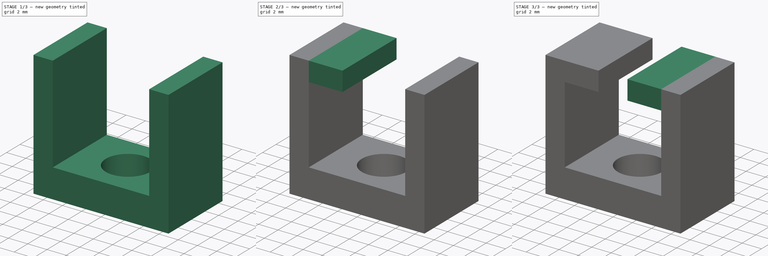
[diagram: build sequence overview — one tinted view per stage of 3, left to right]
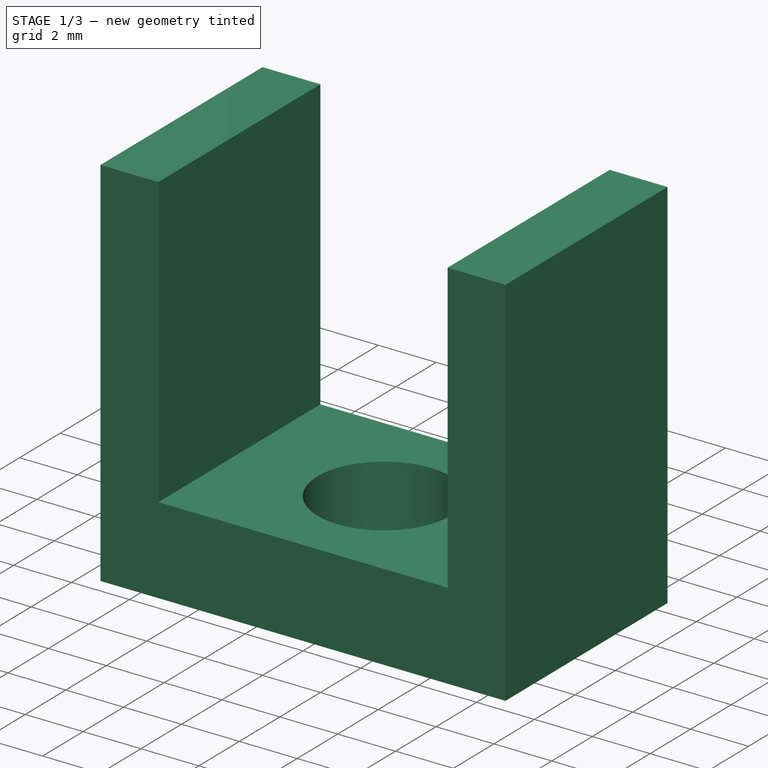
[diagram: stage 1 of 3 — iso view after this stage's code; geometry added in this stage tinted green]
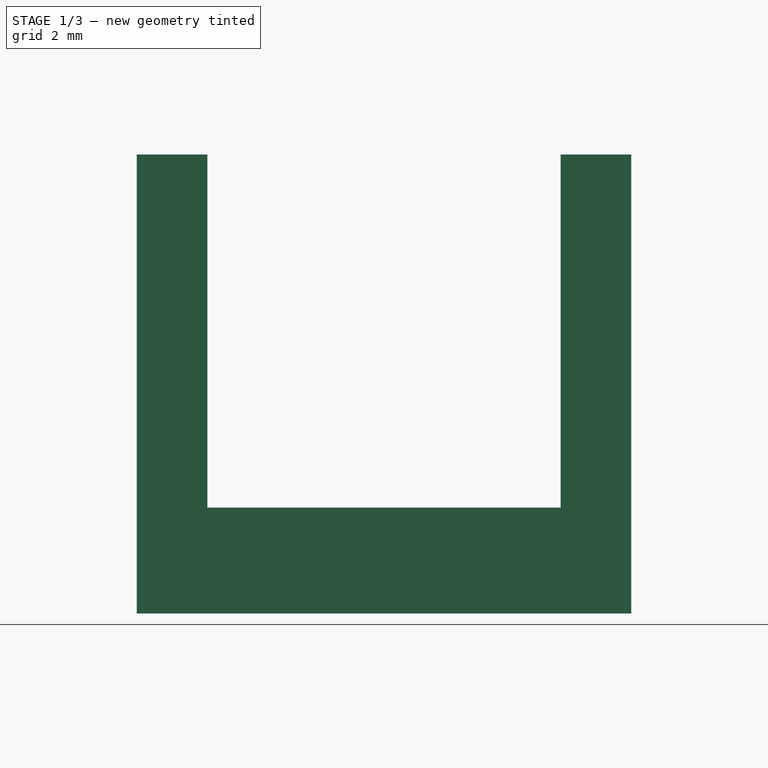
[diagram: stage 1 of 3 — front view after this stage's code; geometry added in this stage tinted green]
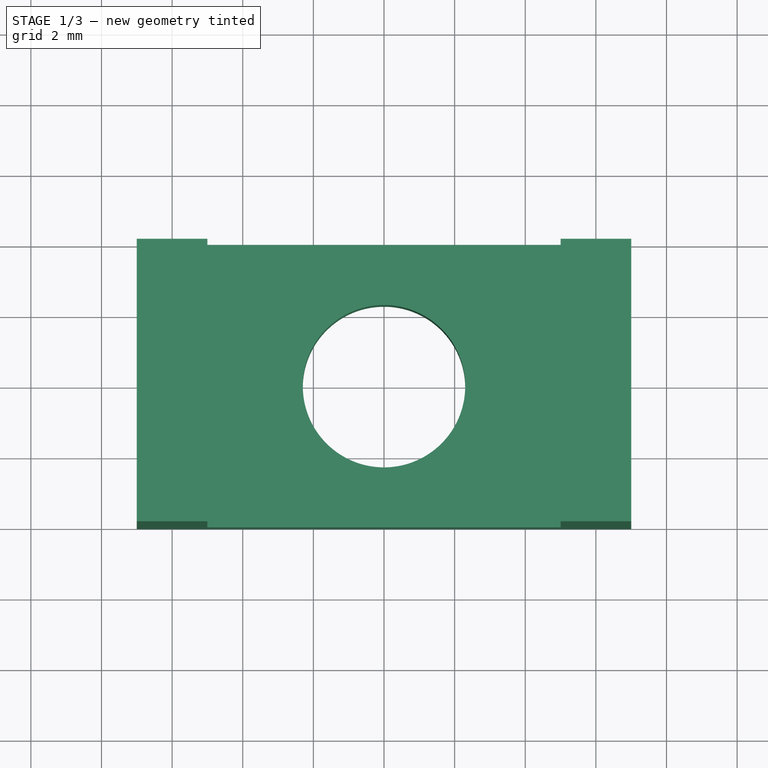
[diagram: stage 1 of 3 — top view after this stage's code; geometry added in this stage tinted green]
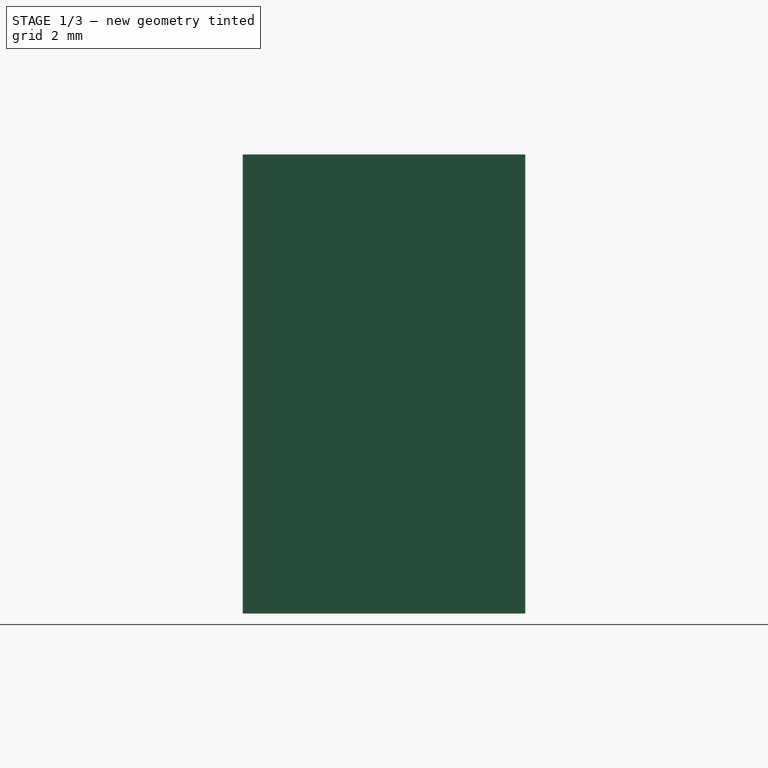
[diagram: stage 1 of 3 — right view after this stage's code; geometry added in this stage tinted green]
FCSTD DOCUMENT  (FreeCAD 0.16R6706 (Git))
Label: BalanceWeight
License: All rights reserved
LicenseURL: http://en.wikipedia.org/wiki/All_rights_reserved
objects: Sketcher::SketchObject×4, PartDesign::Pad×4, Part::MultiFuse×1
note: 13 computed .brp shape members not serialized (recipe doc carries the construction recipe); baked Part::Feature solids carry a one-line shape summary decoded from their .brp

FEATURE [Sketcher::SketchObject] Sketch
  sketch-geometry (5):
    g0: LineSegment StartX=-7 StartY=4 StartZ=0 EndX=7 EndY=4 EndZ=0
    g1: LineSegment StartX=7 StartY=4 StartZ=0 EndX=7 EndY=-4 EndZ=0
    g2: LineSegment StartX=7 StartY=-4 StartZ=0 EndX=-7 EndY=-4 EndZ=0
    g3: LineSegment StartX=-7 StartY=-4 StartZ=0 EndX=-7 EndY=4 EndZ=0
    g4: Circle CenterX=0 CenterY=0 CenterZ=0 NormalX=0 NormalY=0 NormalZ=1 Radius=2.3
  constraints (14):
    c: Coincident(g0,g1)
    c: Coincident(g1,g2)
    c: Coincident(g2,g3)
    c: Coincident(g3,g0)
    c: Horizontal(g0)
    c: Horizontal(g2)
    c: Vertical(g1)
    c: Vertical(g3)
    c: Distance(g1) = 8
    c: Distance(g-1,g3) = 7
    c: Distance(g-1,g0) = 4
    c: Distance(g0) = 14
    c: Coincident(g4,g-1)
    c: Radius(g4) = 2.3
FEATURE [PartDesign::Pad] Pad
  Length = 3
  Length2 = 100
  Sketch = -> Sketch
  Type = 0
FEATURE [Sketcher::SketchObject] Sketch001
  ExternalGeometry = -> [Pad]
  Placement = pos=(0,0,3) rot=(0,0,1;0rad)
  Support = -> Pad [Face7]
  sketch-geometry (8):
    g0: LineSegment StartX=-7 StartY=4 StartZ=0 EndX=-5 EndY=4 EndZ=0
    g1: LineSegment StartX=-5 StartY=4 StartZ=0 EndX=-5 EndY=-4 EndZ=0
    g2: LineSegment StartX=-5 StartY=-4 StartZ=0 EndX=-7 EndY=-4 EndZ=0
    g3: LineSegment StartX=-7 StartY=-4 StartZ=0 EndX=-7 EndY=4 EndZ=0
    g4: LineSegment StartX=7 StartY=4 StartZ=0 EndX=5 EndY=4 EndZ=0
    g5: LineSegment StartX=5 StartY=4 StartZ=0 EndX=5 EndY=-4 EndZ=0
    g6: LineSegment StartX=5 StartY=-4 StartZ=0 EndX=7 EndY=-4 EndZ=0
    g7: LineSegment StartX=7 StartY=-4 StartZ=0 EndX=7 EndY=4 EndZ=0
  constraints (22):
    c: Coincident(g0,g1)
    c: Coincident(g1,g2)
    c: Coincident(g2,g3)
    c: Coincident(g3,g0)
    c: Horizontal(g0)
    c: Horizontal(g2)
    c: Vertical(g1)
    c: Vertical(g3)
    c: Coincident(g0,g-4)
    c: PointOnObject(g1,g-5)
    c: Distance(g0,g0) = 2
    c: Coincident(g4,g5)
    c: Coincident(g5,g6)
    c: Coincident(g6,g7)
    c: Coincident(g7,g4)
    c: Horizontal(g4)
    c: Horizontal(g6)
    c: Vertical(g5)
    c: Vertical(g7)
    c: Coincident(g4,g-6)
    c: PointOnObject(g5,g-5)
    c: Distance(g4,g4) = 2
FEATURE [PartDesign::Pad] Pad001
  Length = 10
  Length2 = 100
  Sketch = -> Sketch001
  Type = 0
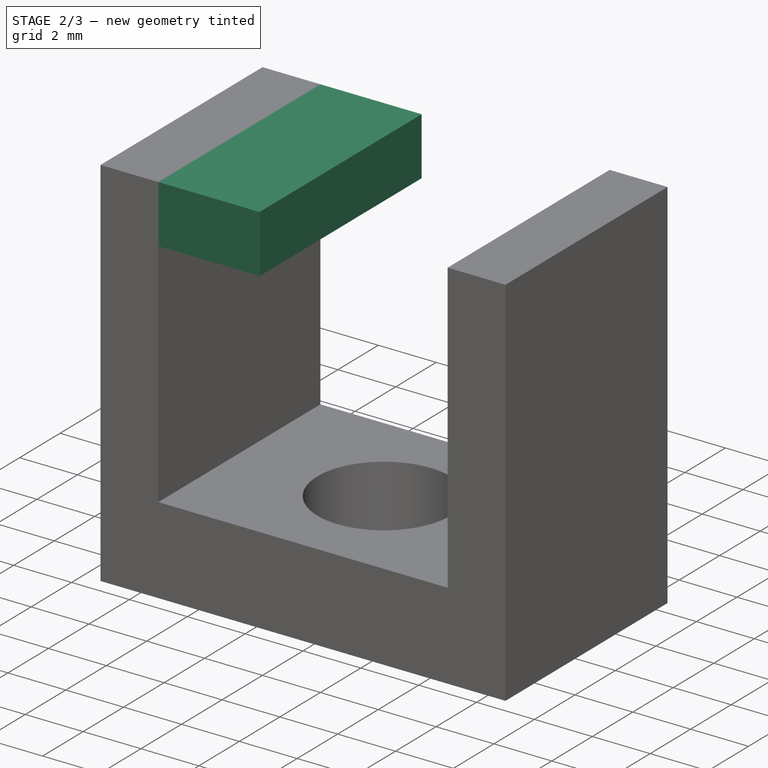
[diagram: stage 2 of 3 — iso view after this stage's code; geometry added in this stage tinted green]
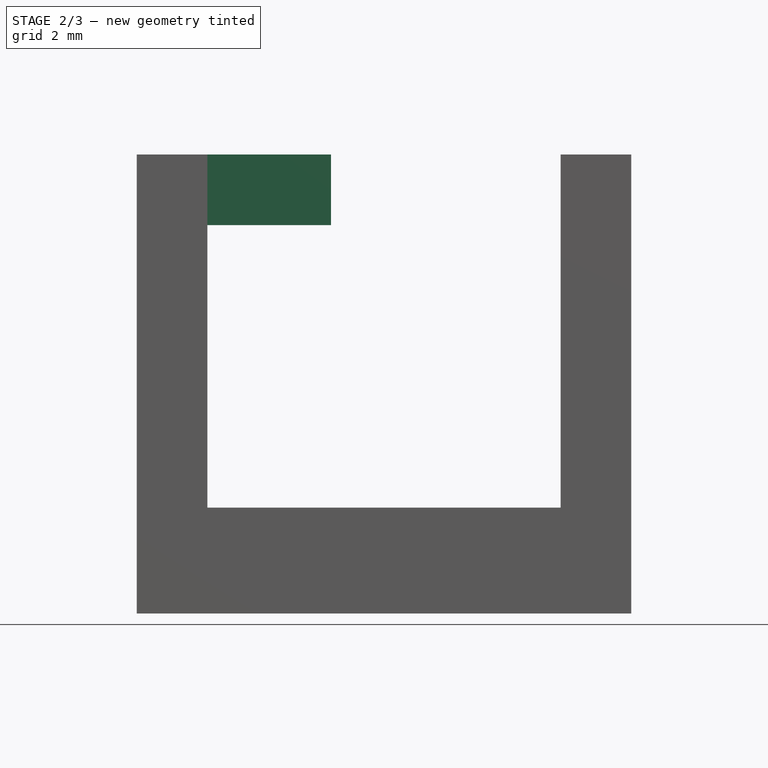
[diagram: stage 2 of 3 — front view after this stage's code; geometry added in this stage tinted green]
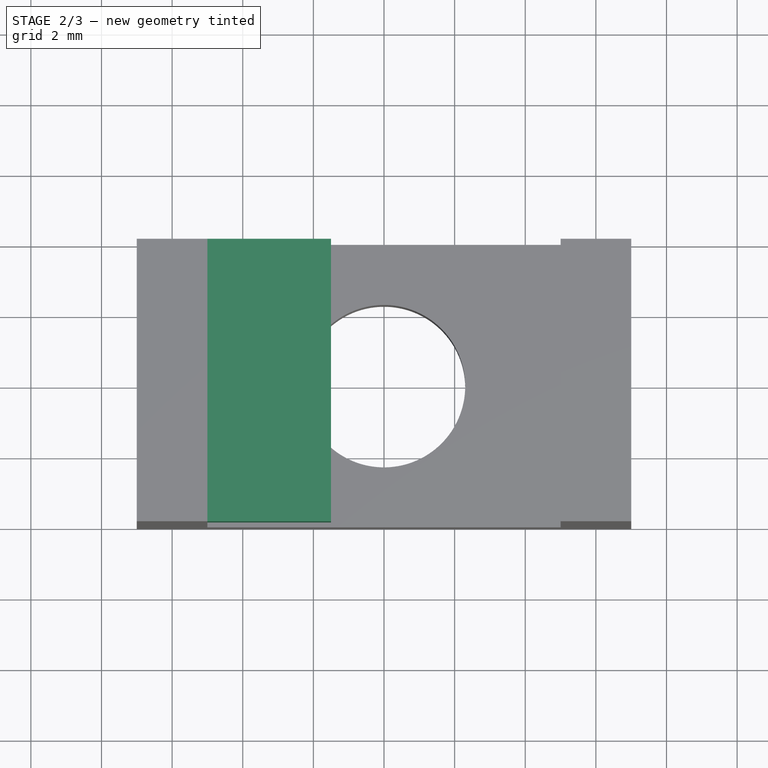
[diagram: stage 2 of 3 — top view after this stage's code; geometry added in this stage tinted green]
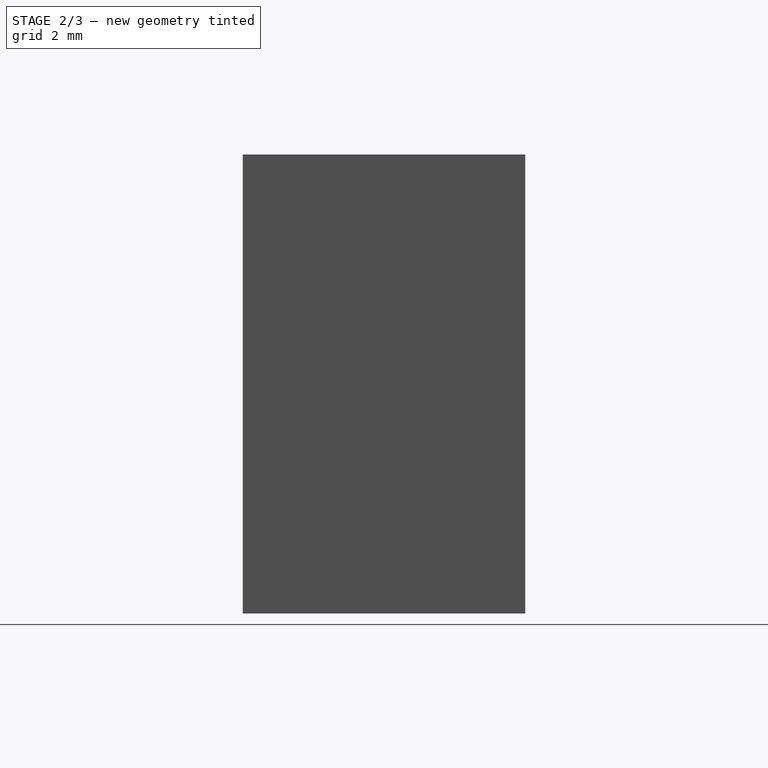
[diagram: stage 2 of 3 — right view after this stage's code; geometry added in this stage tinted green]
FEATURE [Sketcher::SketchObject] Sketch004
  ExternalGeometry = -> [Pad001]
  Placement = pos=(-5,0,0) rot=(0.57735,0.57735,0.57735;2.0944rad)
  Support = -> Pad001 [Face15]
  sketch-geometry (4):
    g0: LineSegment StartX=-4 StartY=13 StartZ=0 EndX=4 EndY=13 EndZ=0
    g1: LineSegment StartX=4 StartY=13 StartZ=0 EndX=4 EndY=11 EndZ=0
    g2: LineSegment StartX=4 StartY=11 StartZ=0 EndX=-4 EndY=11 EndZ=0
    g3: LineSegment StartX=-4 StartY=11 StartZ=0 EndX=-4 EndY=13 EndZ=0
  constraints (11):
    c: Coincident(g0,g1)
    c: Coincident(g1,g2)
    c: Coincident(g2,g3)
    c: Coincident(g3,g0)
    c: Horizontal(g0)
    c: Horizontal(g2)
    c: Vertical(g1)
    c: Vertical(g3)
    c: Coincident(g0,g-4)
    c: PointOnObject(g1,g-5)
    c: Distance(g1,g0) = 2
FEATURE [PartDesign::Pad] Pad004
  Length = 3.5
  Length2 = 100
  Sketch = -> Sketch004
  Type = 0
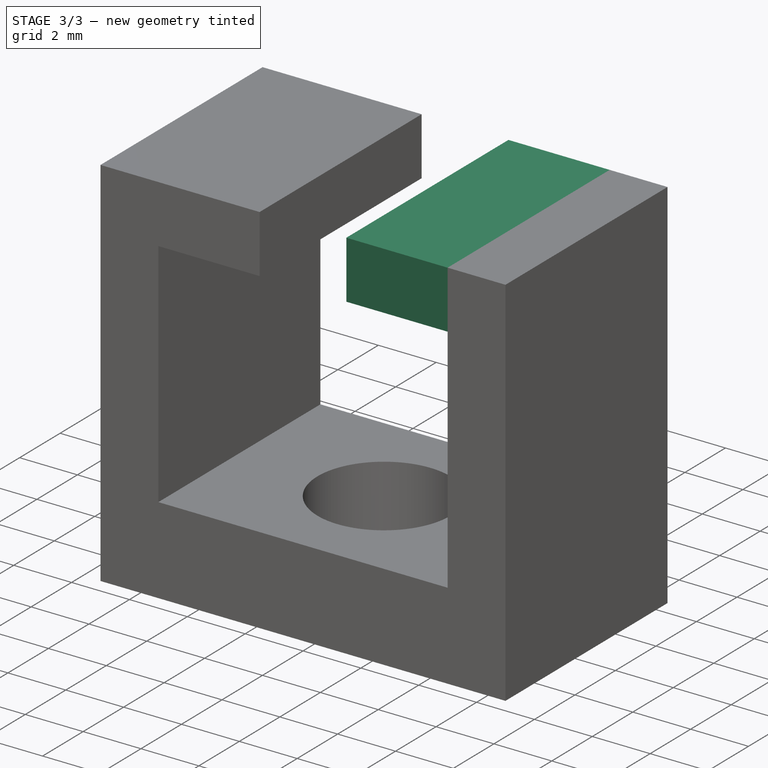
[diagram: stage 3 of 3 — iso view after this stage's code; geometry added in this stage tinted green]
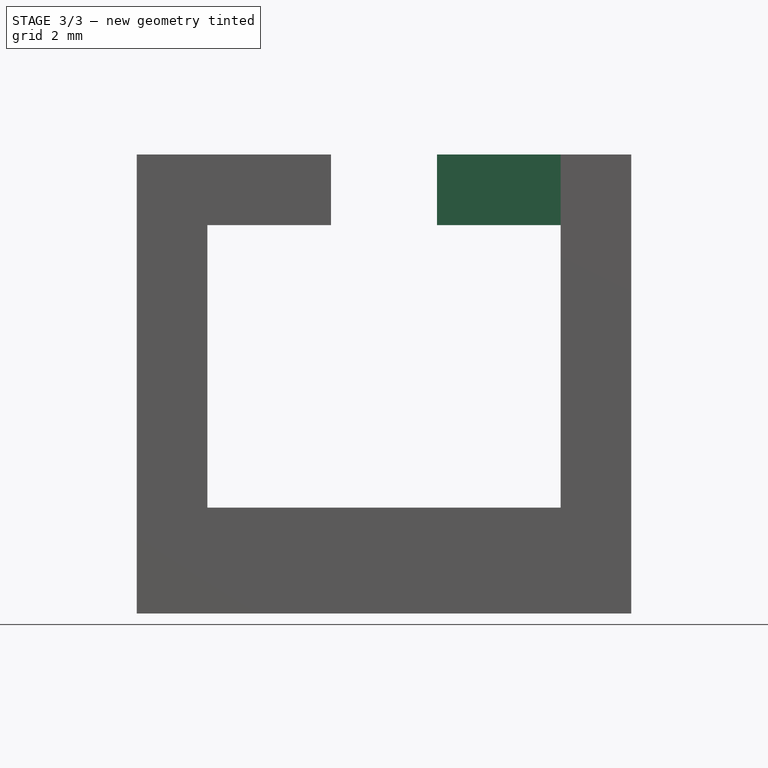
[diagram: stage 3 of 3 — front view after this stage's code; geometry added in this stage tinted green]
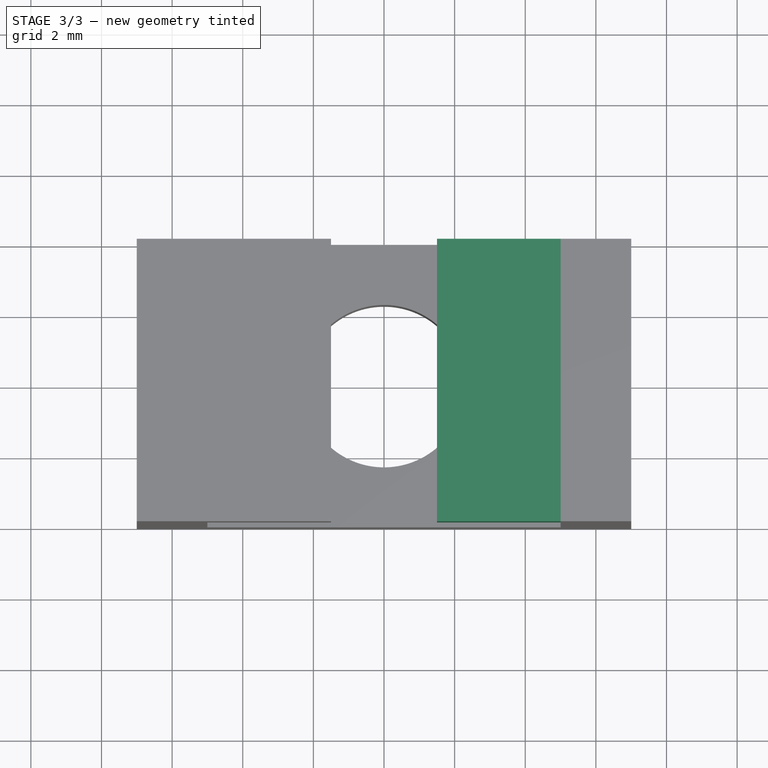
[diagram: stage 3 of 3 — top view after this stage's code; geometry added in this stage tinted green]
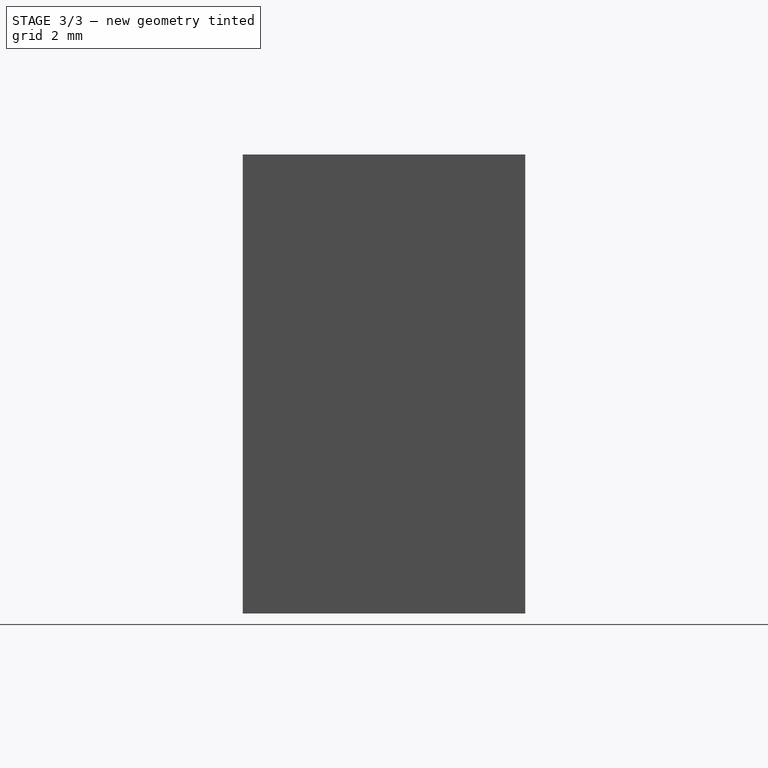
[diagram: stage 3 of 3 — right view after this stage's code; geometry added in this stage tinted green]
FEATURE [Sketcher::SketchObject] Sketch003
  ExternalGeometry = -> [Pad001]
  Placement = pos=(5,0,0) rot=(0.57735,-0.57735,-0.57735;2.0944rad)
  Support = -> Pad001 [Face16]
  sketch-geometry (4):
    g0: LineSegment StartX=-4 StartY=13 StartZ=0 EndX=4 EndY=13 EndZ=0
    g1: LineSegment StartX=4 StartY=13 StartZ=0 EndX=4 EndY=11 EndZ=0
    g2: LineSegment StartX=4 StartY=11 StartZ=0 EndX=-4 EndY=11 EndZ=0
    g3: LineSegment StartX=-4 StartY=11 StartZ=0 EndX=-4 EndY=13 EndZ=0
  constraints (11):
    c: Coincident(g0,g1)
    c: Coincident(g1,g2)
    c: Coincident(g2,g3)
    c: Coincident(g3,g0)
    c: Horizontal(g0)
    c: Horizontal(g2)
    c: Vertical(g1)
    c: Vertical(g3)
    c: Coincident(g0,g-4)
    c: PointOnObject(g1,g-5)
    c: Distance(g0,g1) = 2
FEATURE [PartDesign::Pad] Pad003
  Length = 3.5
  Length2 = 100
  Sketch = -> Sketch003
  Type = 0
FEATURE [Part::MultiFuse] Fusion
  Shapes = -> [Pad004,Pad003]
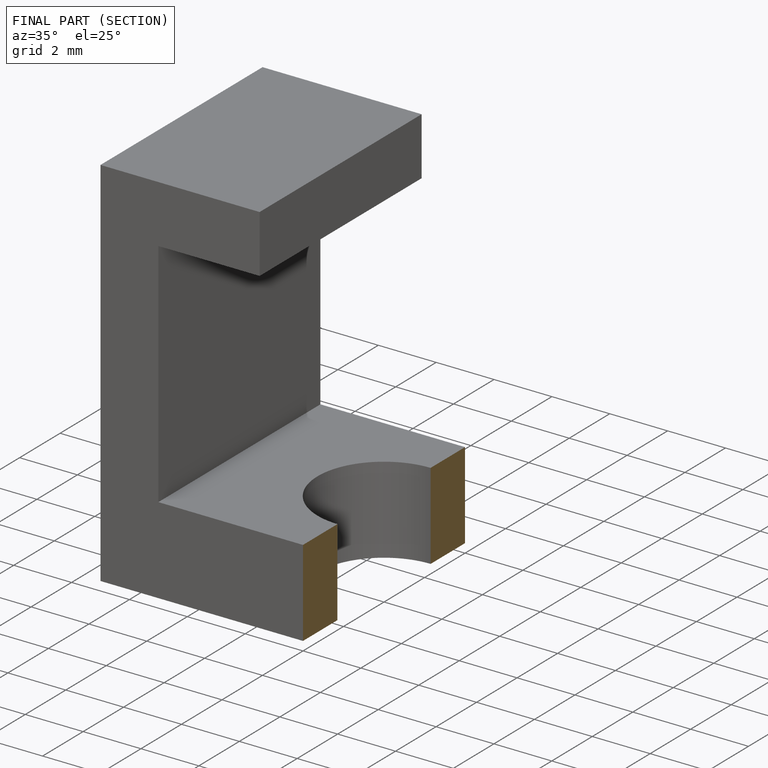
[diagram: finished part — half-section view (interior)]
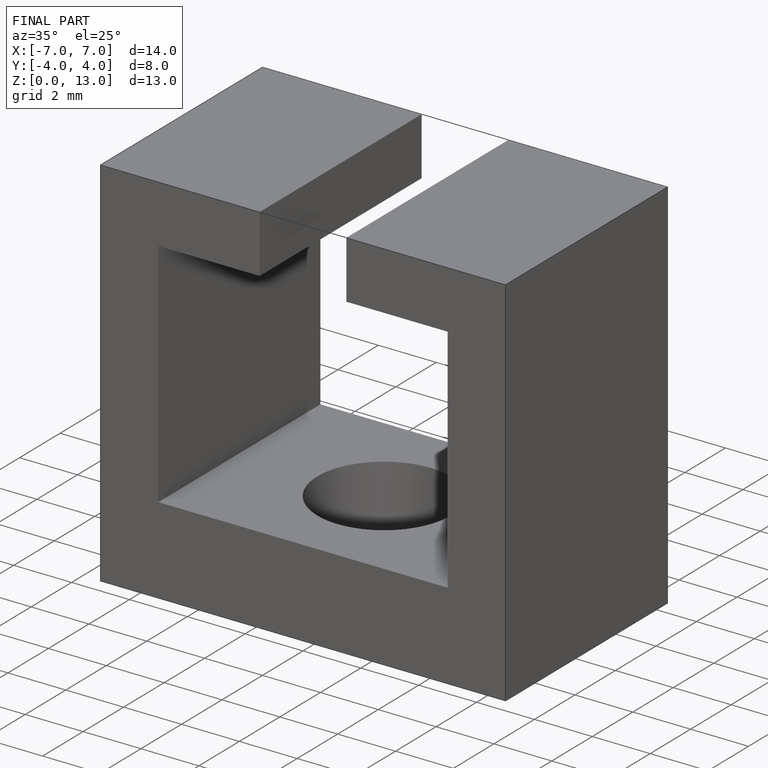
[diagram: finished part — iso view with bounding-box wireframe]
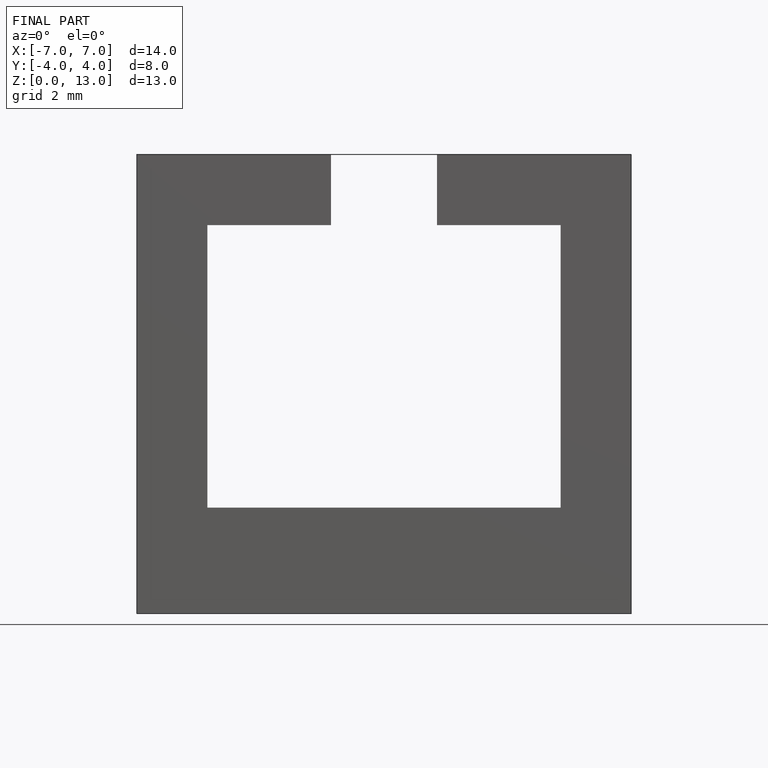
[diagram: finished part — front view with bounding-box wireframe]
